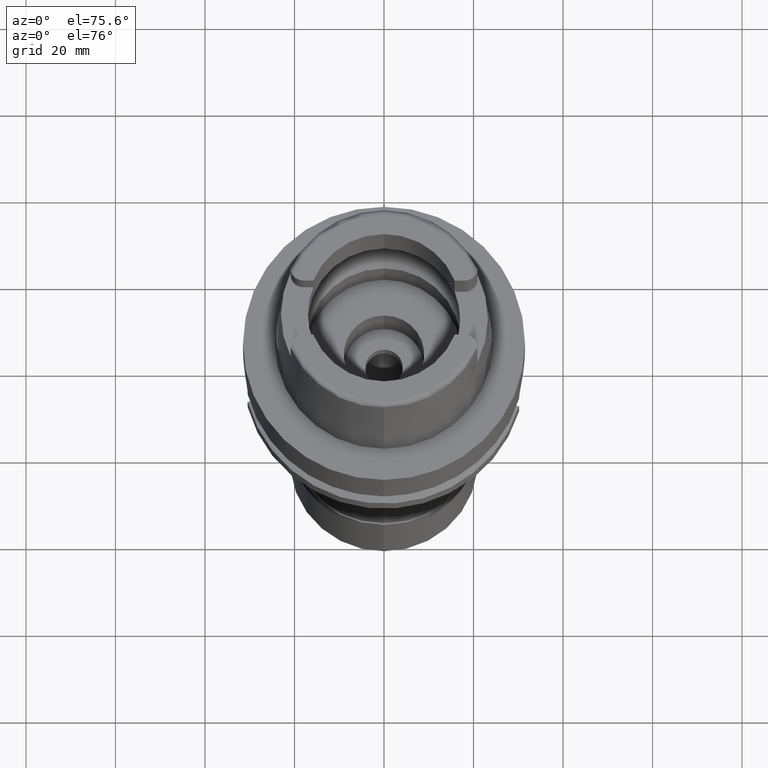
[diagram: clean part render]
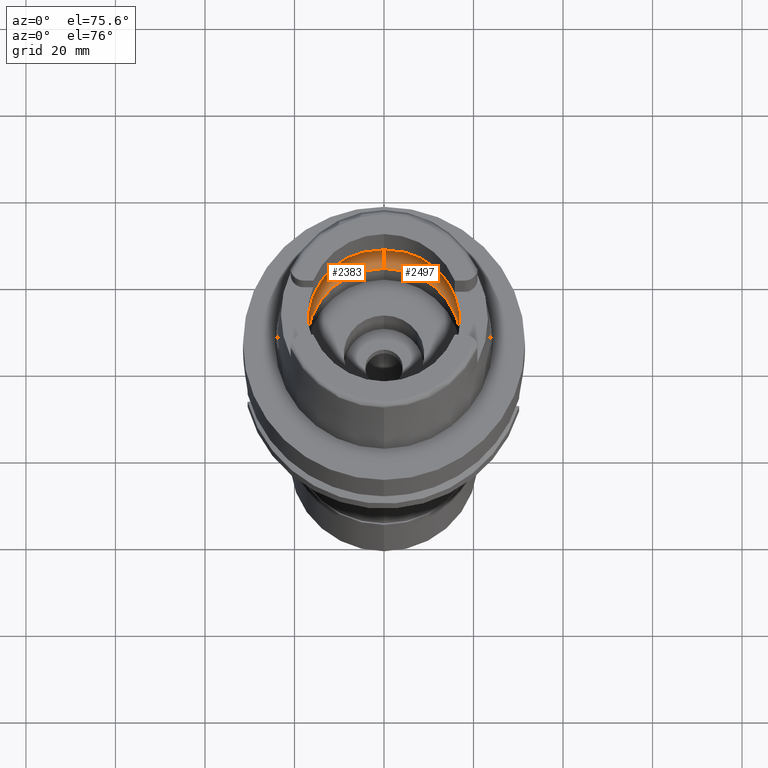
[diagram: same view with one multi-face feature highlighted, each face labeled with its STEP entity id]
A machine part, auxiliary view. The highlighted faces form ONE feature: a constant-radius fillet chain: 2 tangent blend faces with common blend radius 8 mm. The faces share edges in the B-rep.
Their STEP definitions:
[1] entity #2383 (Torus):
#12 = CARTESIAN_POINT ( 'NONE',  ( -19.91819960699401193, -1.528790138807751164, 5.574827418276589341 ) ) ;
#59 = CARTESIAN_POINT ( 'NONE',  ( -19.90056784349247820, -1.871074272730828048, 5.748194928871746434 ) ) ;
#84 = CARTESIAN_POINT ( 'NONE',  ( 0.0000000000000000000, -12.00000000000000000, 6.186348233825000875 ) ) ;
#109 = CARTESIAN_POINT ( 'NONE',  ( -19.90654447560747542, -1.770008974173177263, 5.691881888190377659 ) ) ;
#185 = AXIS2_PLACEMENT_3D ( 'NONE', #5040, #4169, #2087 ) ;
#246 = AXIS2_PLACEMENT_3D ( 'NONE', #314, #3249, #2426 ) ;
#314 = CARTESIAN_POINT ( 'NONE',  ( 0.0000000000000000000, 12.00000000000000000, 6.186348233825000875 ) ) ;
#329 = EDGE_CURVE ( 'NONE', #737, #2105, #4433, .T. ) ;
#447 = ORIENTED_EDGE ( 'NONE', *, *, #3580, .F. ) ;
#482 = CARTESIAN_POINT ( 'NONE',  ( -19.91448525756728927, -1.610510976265786987, 5.612925495665686881 ) ) ;
#575 = DIRECTION ( 'NONE',  ( 0.0000000000000000000, 0.0000000000000000000, -1.000000000000000000 ) ) ;
#737 = VERTEX_POINT ( 'NONE', #3972 ) ;
#836 = EDGE_CURVE ( 'NONE', #737, #3674, #4495, .T. ) ;
#893 = CARTESIAN_POINT ( 'NONE',  ( -19.94501428475999560, -0.4960423020627297008, 5.249999999999995559 ) ) ;
#946 = CARTESIAN_POINT ( 'NONE',  ( -19.84575864665999845, 2.479085262489999941, 6.186348233825000875 ) ) ;
#950 = CARTESIAN_POINT ( 'NONE',  ( -19.93292508344945801, 1.081630659659294169, 5.408972087979956989 ) ) ;
#970 = TOROIDAL_SURFACE ( 'NONE', #2394, 12.00000000000000000, 8.000000000000000000 ) ;
#973 = DIRECTION ( 'NONE',  ( -1.000000000000000000, 0.0000000000000000000, 0.0000000000000000000 ) ) ;
#974 = ORIENTED_EDGE ( 'NONE', *, *, #4100, .F. ) ;
#1168 = DIRECTION ( 'NONE',  ( 0.0000000000000000000, 1.000000000000000000, 0.0000000000000000000 ) ) ;
#1180 = CARTESIAN_POINT ( 'NONE',  ( -19.93856671072771292, 0.8185607198028845843, 5.338678409714962214 ) ) ;
#1207 = ORIENTED_EDGE ( 'NONE', *, *, #5004, .F. ) ;
#1391 = CARTESIAN_POINT ( 'NONE',  ( -19.92547007504345302, -1.335031240339097369, 5.495683724100088874 ) ) ;
#1589 = CARTESIAN_POINT ( 'NONE',  ( 0.0000000000000000000, 0.0000000000000000000, 6.186348233825000875 ) ) ;
#1734 = CARTESIAN_POINT ( 'NONE',  ( -19.92208494194046509, -1.430041077684033990, 5.533135808937241329 ) ) ;
#1760 = CARTESIAN_POINT ( 'NONE',  ( -19.93096058823649130, 1.157935579649966629, 5.432577573767241041 ) ) ;
#1843 = CARTESIAN_POINT ( 'NONE',  ( -19.84575864665999845, -2.479085262491000030, 6.186348233825000875 ) ) ;
#1912 = CARTESIAN_POINT ( 'NONE',  ( 0.0000000000000000000, -20.00000000000000000, 6.186348233825000875 ) ) ;
#1969 = VERTEX_POINT ( 'NONE', #1843 ) ;
#2016 = CARTESIAN_POINT ( 'NONE',  ( -19.94501428476000271, 0.2480002814738951344, 5.249999999999999112 ) ) ;
#2087 = DIRECTION ( 'NONE',  ( 0.0000000000000000000, 1.000000000000000000, 0.0000000000000000000 ) ) ;
#2105 = VERTEX_POINT ( 'NONE', #3470 ) ;
#2113 = DIRECTION ( 'NONE',  ( 0.0000000000000000000, 0.0000000000000000000, -1.000000000000000000 ) ) ;
#2154 = CARTESIAN_POINT ( 'NONE',  ( -19.84575864665999845, -2.479085262491000030, 6.186348233825000875 ) ) ;
#2157 = AXIS2_PLACEMENT_3D ( 'NONE', #2600, #575, #5206 ) ;
#2181 = CARTESIAN_POINT ( 'NONE',  ( -19.90996073982917380, 1.795817278995830657, 5.670328124222732136 ) ) ;
#2233 = CARTESIAN_POINT ( 'NONE',  ( -19.92840422587602944, 1.244362650384072122, 5.462311864171463860 ) ) ;
#2266 = CARTESIAN_POINT ( 'NONE',  ( -19.92607296192538513, 1.317057065037986030, 5.488888788417265907 ) ) ;
#2383 = ADVANCED_FACE ( 'NONE', ( #3334 ), #970, .F. ) ;
#2394 = AXIS2_PLACEMENT_3D ( 'NONE', #1589, #3745, #1168 ) ;
#2426 = DIRECTION ( 'NONE',  ( 0.0000000000000000000, 0.6562500000000006661, -0.7545435292281016393 ) ) ;
#2600 = CARTESIAN_POINT ( 'NONE',  ( 0.0000000000000000000, 0.0000000000000000000, 6.186348233825000875 ) ) ;
#2620 = VERTEX_POINT ( 'NONE', #946 ) ;
#2666 = DIRECTION ( 'NONE',  ( 0.0000000000000000000, -0.6562500000000006661, -0.7545435292281016393 ) ) ;
#2672 = CARTESIAN_POINT ( 'NONE',  ( -19.92646963884338263, 1.305022040076338818, 5.484397814373272340 ) ) ;
#2720 = CARTESIAN_POINT ( 'NONE',  ( -19.94501428475999916, 0.0000000000000000000, 5.250000000000000000 ) ) ;
#2867 = CARTESIAN_POINT ( 'NONE',  ( -19.93655184384261858, 0.9261166967963114782, 5.364558725656097593 ) ) ;
#2886 = VERTEX_POINT ( 'NONE', #2720 ) ;
#2971 = CARTESIAN_POINT ( 'NONE',  ( -19.92705993187612989, 1.286922590644232978, 5.477696685208107930 ) ) ;
#2994 = CARTESIAN_POINT ( 'NONE',  ( -19.92517785718085577, -1.343613127942956842, 5.498962406970089312 ) ) ;
#3002 = CARTESIAN_POINT ( 'NONE',  ( -19.92591704426989452, 1.321751840890049490, 5.490650643677390974 ) ) ;
#3249 = DIRECTION ( 'NONE',  ( 1.000000000000000000, 0.0000000000000000000, 0.0000000000000000000 ) ) ;
#3283 = CARTESIAN_POINT ( 'NONE',  ( -19.94340239125193293, 0.4850157974226460000, 5.274610163457148282 ) ) ;
#3334 = FACE_OUTER_BOUND ( 'NONE', #4861, .T. ) ;
#3395 = CIRCLE ( 'NONE', #5175, 20.00000000000000000 ) ;
#3422 = CARTESIAN_POINT ( 'NONE',  ( -19.92391559123418787, -1.379822842001579009, 5.513022806674898746 ) ) ;
#3432 = CARTESIAN_POINT ( 'NONE',  ( 0.0000000000000000000, 0.0000000000000000000, 6.186348233825000875 ) ) ;
#3470 = CARTESIAN_POINT ( 'NONE',  ( 0.0000000000000000000, -17.25000000000000000, 0.1500000000000999700 ) ) ;
#3580 = EDGE_CURVE ( 'NONE', #2886, #2620, #5461, .T. ) ;
#3674 = VERTEX_POINT ( 'NONE', #4275 ) ;
#3745 = DIRECTION ( 'NONE',  ( 0.0000000000000000000, 0.0000000000000000000, 1.000000000000000000 ) ) ;
#3773 = ORIENTED_EDGE ( 'NONE', *, *, #329, .F. ) ;
#3906 = CARTESIAN_POINT ( 'NONE',  ( -19.88332310116147283, 2.178371483505385786, 5.921391814315846602 ) ) ;
#3972 = CARTESIAN_POINT ( 'NONE',  ( 0.0000000000000000000, 17.25000000000000000, 0.1500000000000999700 ) ) ;
#3984 = AXIS2_PLACEMENT_3D ( 'NONE', #84, #973, #2666 ) ;
#3998 = ORIENTED_EDGE ( 'NONE', *, *, #4614, .F. ) ;
#4064 = EDGE_CURVE ( 'NONE', #1969, #2886, #4719, .T. ) ;
#4078 = CIRCLE ( 'NONE', #2157, 20.00000000000001421 ) ;
#4100 = EDGE_CURVE ( 'NONE', #2105, #4490, #5073, .T. ) ;
#4169 = DIRECTION ( 'NONE',  ( 0.0000000000000000000, 0.0000000000000000000, 1.000000000000000000 ) ) ;
#4271 = CARTESIAN_POINT ( 'NONE',  ( -19.94501428475999916, 0.0000000000000000000, 5.250000000000000000 ) ) ;
#4275 = CARTESIAN_POINT ( 'NONE',  ( 0.0000000000000000000, 20.00000000000000000, 6.186348233825000875 ) ) ;
#4433 = CIRCLE ( 'NONE', #185, 17.25000000000000000 ) ;
#4490 = VERTEX_POINT ( 'NONE', #1912 ) ;
#4495 = CIRCLE ( 'NONE', #246, 7.999999999999992895 ) ;
#4527 = CARTESIAN_POINT ( 'NONE',  ( -19.94501428475999916, 0.0000000000000000000, 5.250000000000000000 ) ) ;
#4614 = EDGE_CURVE ( 'NONE', #4490, #1969, #3395, .T. ) ;
#4684 = CARTESIAN_POINT ( 'NONE',  ( -19.93856671042052398, -0.9459665778997381480, 5.348222674928019060 ) ) ;
#4719 = B_SPLINE_CURVE_WITH_KNOTS ( 'NONE', 3,
 ( #2154, #5200, #5144, #59, #109, #482, #12, #1734, #3422, #5116, #2994, #1391, #4684, #893, #4271 ),
 .UNSPECIFIED., .F., .F.,
 ( 4, 2, 2, 1, 1, 1, 2, 2, 4 ),
 ( 0.0000000000000000000, 0.2500000000000051070, 0.3750000000000077716, 0.4375000000000091038, 0.4687500000000098255, 0.4843750000000101030, 0.4921875000000099920, 0.5000000000000098810, 1.000000000000000000 ),
 .UNSPECIFIED. ) ;
#4861 = EDGE_LOOP ( 'NONE', ( #3998, #974, #3773, #4887, #1207, #447, #5053 ) ) ;
#4887 = ORIENTED_EDGE ( 'NONE', *, *, #836, .T. ) ;
#5004 = EDGE_CURVE ( 'NONE', #2620, #3674, #4078, .T. ) ;
#5013 = DIRECTION ( 'NONE',  ( 0.0000000000000000000, -1.000000000000000000, 0.0000000000000000000 ) ) ;
#5040 = CARTESIAN_POINT ( 'NONE',  ( 0.0000000000000000000, 0.0000000000000000000, 0.1500000000000999700 ) ) ;
#5053 = ORIENTED_EDGE ( 'NONE', *, *, #4064, .F. ) ;
#5073 = CIRCLE ( 'NONE', #3984, 7.999999999999992895 ) ;
#5116 = CARTESIAN_POINT ( 'NONE',  ( -19.92467615132159864, -1.358120919786871328, 5.504564686247708671 ) ) ;
#5144 = CARTESIAN_POINT ( 'NONE',  ( -19.88058961472209774, -2.158414018199903417, 5.925204145833316893 ) ) ;
#5175 = AXIS2_PLACEMENT_3D ( 'NONE', #3432, #2113, #5013 ) ;
#5200 = CARTESIAN_POINT ( 'NONE',  ( -19.86453968564131500, -2.328737885376345407, 6.053878405347992597 ) ) ;
#5204 = CARTESIAN_POINT ( 'NONE',  ( -19.84575864665999845, 2.479085262489999941, 6.186348233825000875 ) ) ;
#5206 = DIRECTION ( 'NONE',  ( -0.9922879323327794543, 0.1239542631244973381, 0.0000000000000000000 ) ) ;
#5461 = B_SPLINE_CURVE_WITH_KNOTS ( 'NONE', 3,
 ( #4527, #2016, #3283, #1180, #2867, #950, #1760, #2233, #2971, #2672, #2266, #3002, #2181, #3906, #5204 ),
 .UNSPECIFIED., .F., .F.,
 ( 4, 2, 2, 1, 1, 1, 2, 2, 4 ),
 ( 0.0000000000000000000, 0.2499999999999956146, 0.3749999999999934497, 0.4374999999999923395, 0.4687499999999917288, 0.4843749999999914513, 0.4921874999999914513, 0.4999999999999915623, 1.000000000000000000 ),
 .UNSPECIFIED. ) ;
[2] entity #2497 (Torus):
#48 = EDGE_CURVE ( 'NONE', #2105, #737, #1255, .T. ) ;
#84 = CARTESIAN_POINT ( 'NONE',  ( 0.0000000000000000000, -12.00000000000000000, 6.186348233825000875 ) ) ;
#120 = EDGE_CURVE ( 'NONE', #2910, #647, #5382, .T. ) ;
#141 = CARTESIAN_POINT ( 'NONE',  ( 19.94501428475999916, 0.0000000000000000000, 5.250000000000000000 ) ) ;
#160 = CARTESIAN_POINT ( 'NONE',  ( 19.93856675271270618, 0.9459631445367676639, 5.348221889603026469 ) ) ;
#200 = DIRECTION ( 'NONE',  ( 0.0000000000000000000, 0.0000000000000000000, -1.000000000000000000 ) ) ;
#226 = ORIENTED_EDGE ( 'NONE', *, *, #3814, .F. ) ;
#246 = AXIS2_PLACEMENT_3D ( 'NONE', #314, #3249, #2426 ) ;
#277 = CIRCLE ( 'NONE', #4073, 20.00000000000001421 ) ;
#314 = CARTESIAN_POINT ( 'NONE',  ( 0.0000000000000000000, 12.00000000000000000, 6.186348233825000875 ) ) ;
#375 = CARTESIAN_POINT ( 'NONE',  ( 19.91448538158095616, 1.610508053762637504, 5.612924102263966653 ) ) ;
#388 = CARTESIAN_POINT ( 'NONE',  ( 19.88332301270226665, -2.178372191595277396, 5.921392438207983666 ) ) ;
#444 = CARTESIAN_POINT ( 'NONE',  ( 19.94340238078356720, -0.4850176595367955978, 5.274610361541469672 ) ) ;
#483 = VERTEX_POINT ( 'NONE', #3212 ) ;
#527 = CARTESIAN_POINT ( 'NONE',  ( 19.91819973341328875, 1.528786876979157716, 5.574825955112756581 ) ) ;
#588 = CARTESIAN_POINT ( 'NONE',  ( 19.92547020324161622, 1.335027099705274445, 5.495682146681705404 ) ) ;
#647 = VERTEX_POINT ( 'NONE', #141 ) ;
#652 = CARTESIAN_POINT ( 'NONE',  ( 0.0000000000000000000, 0.0000000000000000000, 0.1500000000000999700 ) ) ;
#676 = DIRECTION ( 'NONE',  ( 0.0000000000000000000, 0.0000000000000000000, -1.000000000000000000 ) ) ;
#737 = VERTEX_POINT ( 'NONE', #3972 ) ;
#757 = DIRECTION ( 'NONE',  ( 0.0000000000000000000, 1.000000000000000000, 0.0000000000000000000 ) ) ;
#784 = CARTESIAN_POINT ( 'NONE',  ( 19.90654459260023401, 1.770006697072565638, 5.691880654306289422 ) ) ;
#836 = EDGE_CURVE ( 'NONE', #737, #3674, #4495, .T. ) ;
#877 = CARTESIAN_POINT ( 'NONE',  ( 19.84575864665999845, -2.479085262491000030, 6.186348233825000875 ) ) ;
#885 = DIRECTION ( 'NONE',  ( 0.0000000000000000000, -1.000000000000000000, 0.0000000000000000000 ) ) ;
#944 = CARTESIAN_POINT ( 'NONE',  ( 19.90056795285840252, 1.871072381427654641, 5.748193827892907670 ) ) ;
#973 = DIRECTION ( 'NONE',  ( -1.000000000000000000, 0.0000000000000000000, 0.0000000000000000000 ) ) ;
#1244 = TOROIDAL_SURFACE ( 'NONE', #4336, 12.00000000000000000, 8.000000000000000000 ) ;
#1245 = CARTESIAN_POINT ( 'NONE',  ( 19.94501428475999916, 0.0000000000000000000, 5.250000000000000000 ) ) ;
#1255 = CIRCLE ( 'NONE', #1785, 17.25000000000000000 ) ;
#1345 = CIRCLE ( 'NONE', #2921, 20.00000000000000000 ) ;
#1362 = CARTESIAN_POINT ( 'NONE',  ( 19.88058969236887918, 2.158413152842832083, 5.925203484518751118 ) ) ;
#1639 = CARTESIAN_POINT ( 'NONE',  ( 19.90996060949652602, -1.795819319521762880, 5.670329520825312386 ) ) ;
#1670 = FACE_OUTER_BOUND ( 'NONE', #2869, .T. ) ;
#1693 = CARTESIAN_POINT ( 'NONE',  ( 19.92607283891191727, -1.317061137141631644, 5.488890315884864535 ) ) ;
#1785 = AXIS2_PLACEMENT_3D ( 'NONE', #652, #4678, #885 ) ;
#1912 = CARTESIAN_POINT ( 'NONE',  ( 0.0000000000000000000, -20.00000000000000000, 6.186348233825000875 ) ) ;
#2057 = ORIENTED_EDGE ( 'NONE', *, *, #3379, .F. ) ;
#2105 = VERTEX_POINT ( 'NONE', #3470 ) ;
#2166 = CARTESIAN_POINT ( 'NONE',  ( 19.93655178888372603, -0.9261198900591779415, 5.364559530321097114 ) ) ;
#2223 = CARTESIAN_POINT ( 'NONE',  ( 19.92517798419736508, 1.343609062691706768, 5.498960846759680443 ) ) ;
#2255 = CARTESIAN_POINT ( 'NONE',  ( 19.94501428475999916, 0.0000000000000000000, 5.250000000000000000 ) ) ;
#2281 = CARTESIAN_POINT ( 'NONE',  ( 19.94501428475999916, 0.4960402853743813290, 5.250000000000000888 ) ) ;
#2288 = CARTESIAN_POINT ( 'NONE',  ( 0.0000000000000000000, 0.0000000000000000000, 6.186348233825000875 ) ) ;
#2369 = DIRECTION ( 'NONE',  ( 0.9922879323327794543, -0.1239542631244973381, 0.0000000000000000000 ) ) ;
#2426 = DIRECTION ( 'NONE',  ( 0.0000000000000000000, 0.6562500000000006661, -0.7545435292281016393 ) ) ;
#2469 = CARTESIAN_POINT ( 'NONE',  ( 19.93292500493674524, -1.081634238850563756, 5.408973163817657692 ) ) ;
#2497 = ADVANCED_FACE ( 'NONE', ( #1670 ), #1244, .F. ) ;
#2513 = DIRECTION ( 'NONE',  ( 0.0000000000000000000, 1.000000000000000000, 0.0000000000000000000 ) ) ;
#2538 = ORIENTED_EDGE ( 'NONE', *, *, #120, .F. ) ;
#2635 = CARTESIAN_POINT ( 'NONE',  ( 19.92391571847978327, 1.379818936262329210, 5.513021260670505796 ) ) ;
#2660 = CARTESIAN_POINT ( 'NONE',  ( 19.84575864665999845, 2.479085262491000030, 6.186348233825000875 ) ) ;
#2666 = DIRECTION ( 'NONE',  ( 0.0000000000000000000, -0.6562500000000006661, -0.7545435292281016393 ) ) ;
#2668 = ORIENTED_EDGE ( 'NONE', *, *, #4558, .F. ) ;
#2841 = CARTESIAN_POINT ( 'NONE',  ( 0.0000000000000000000, 0.0000000000000000000, 6.186348233825000875 ) ) ;
#2859 = DIRECTION ( 'NONE',  ( 0.0000000000000000000, 0.0000000000000000000, 1.000000000000000000 ) ) ;
#2869 = EDGE_LOOP ( 'NONE', ( #2538, #2057, #3247, #3650, #4446, #226, #2668 ) ) ;
#2910 = VERTEX_POINT ( 'NONE', #3215 ) ;
#2921 = AXIS2_PLACEMENT_3D ( 'NONE', #2841, #676, #2513 ) ;
#2955 = CARTESIAN_POINT ( 'NONE',  ( 19.92705981527248582, -1.286926606873759260, 5.477698152406421883 ) ) ;
#3212 = CARTESIAN_POINT ( 'NONE',  ( 19.84575864665999845, -2.479085262491000030, 6.186348233825000875 ) ) ;
#3215 = CARTESIAN_POINT ( 'NONE',  ( 19.84575864665999845, 2.479085262491000030, 6.186348233825000875 ) ) ;
#3247 = ORIENTED_EDGE ( 'NONE', *, *, #836, .F. ) ;
#3249 = DIRECTION ( 'NONE',  ( 1.000000000000000000, 0.0000000000000000000, 0.0000000000000000000 ) ) ;
#3350 = CARTESIAN_POINT ( 'NONE',  ( 19.92591691872321036, -1.321755966737460097, 5.490652197696743286 ) ) ;
#3379 = EDGE_CURVE ( 'NONE', #3674, #2910, #1345, .T. ) ;
#3470 = CARTESIAN_POINT ( 'NONE',  ( 0.0000000000000000000, -17.25000000000000000, 0.1500000000000999700 ) ) ;
#3650 = ORIENTED_EDGE ( 'NONE', *, *, #48, .F. ) ;
#3674 = VERTEX_POINT ( 'NONE', #4275 ) ;
#3721 = CARTESIAN_POINT ( 'NONE',  ( 19.92467627844355249, 1.358116918539703288, 5.504563131532022702 ) ) ;
#3733 = CARTESIAN_POINT ( 'NONE',  ( 19.92840411800285239, -1.244366584479200233, 5.462313247185337062 ) ) ;
#3814 = EDGE_CURVE ( 'NONE', #483, #4490, #277, .T. ) ;
#3972 = CARTESIAN_POINT ( 'NONE',  ( 0.0000000000000000000, 17.25000000000000000, 0.1500000000000999700 ) ) ;
#3984 = AXIS2_PLACEMENT_3D ( 'NONE', #84, #973, #2666 ) ;
#4073 = AXIS2_PLACEMENT_3D ( 'NONE', #2288, #200, #2369 ) ;
#4100 = EDGE_CURVE ( 'NONE', #2105, #4490, #5073, .T. ) ;
#4168 = CARTESIAN_POINT ( 'NONE',  ( 19.93856666885426776, -0.8185636124059944008, 5.338679045133568835 ) ) ;
#4257 = CARTESIAN_POINT ( 'NONE',  ( 19.94501428475999916, -0.2480012822881115242, 5.249999999999998224 ) ) ;
#4275 = CARTESIAN_POINT ( 'NONE',  ( 0.0000000000000000000, 20.00000000000000000, 6.186348233825000875 ) ) ;
#4317 = CARTESIAN_POINT ( 'NONE',  ( 19.86453973035713005, 2.328737527431126608, 6.053878089965426312 ) ) ;
#4336 = AXIS2_PLACEMENT_3D ( 'NONE', #4519, #2859, #757 ) ;
#4446 = ORIENTED_EDGE ( 'NONE', *, *, #4100, .T. ) ;
#4490 = VERTEX_POINT ( 'NONE', #1912 ) ;
#4495 = CIRCLE ( 'NONE', #246, 7.999999999999992895 ) ;
#4519 = CARTESIAN_POINT ( 'NONE',  ( 0.0000000000000000000, 0.0000000000000000000, 6.186348233825000875 ) ) ;
#4558 = EDGE_CURVE ( 'NONE', #647, #483, #4776, .T. ) ;
#4617 = CARTESIAN_POINT ( 'NONE',  ( 19.93096049696546856, -1.157939335591951835, 5.432578789541310016 ) ) ;
#4678 = DIRECTION ( 'NONE',  ( 0.0000000000000000000, 0.0000000000000000000, 1.000000000000000000 ) ) ;
#4742 = CARTESIAN_POINT ( 'NONE',  ( 19.92208506923287104, 1.430037391292800830, 5.533134286468000873 ) ) ;
#4776 = B_SPLINE_CURVE_WITH_KNOTS ( 'NONE', 3,
 ( #1245, #4257, #444, #4168, #2166, #2469, #4617, #3733, #2955, #5430, #1693, #3350, #1639, #388, #877 ),
 .UNSPECIFIED., .F., .F.,
 ( 4, 2, 2, 1, 1, 1, 2, 2, 4 ),
 ( 0.0000000000000000000, 0.2499999999999993339, 0.3749999999999989453, 0.4374999999999988343, 0.4687499999999988343, 0.4843749999999986122, 0.4921874999999987788, 0.4999999999999990008, 1.000000000000000000 ),
 .UNSPECIFIED. ) ;
#5073 = CIRCLE ( 'NONE', #3984, 7.999999999999992895 ) ;
#5382 = B_SPLINE_CURVE_WITH_KNOTS ( 'NONE', 3,
 ( #2660, #4317, #1362, #944, #784, #375, #527, #4742, #2635, #3721, #2223, #588, #160, #2281, #2255 ),
 .UNSPECIFIED., .F., .F.,
 ( 4, 2, 2, 1, 1, 1, 2, 2, 4 ),
 ( 0.0000000000000000000, 0.2500000000000098810, 0.3750000000000143774, 0.4375000000000168199, 0.4687500000000177636, 0.4843750000000178746, 0.4921875000000178191, 0.5000000000000177636, 1.000000000000000000 ),
 .UNSPECIFIED. ) ;
#5430 = CARTESIAN_POINT ( 'NONE',  ( 19.92646951840612601, -1.305026090026983221, 5.484399317726092349 ) ) ;